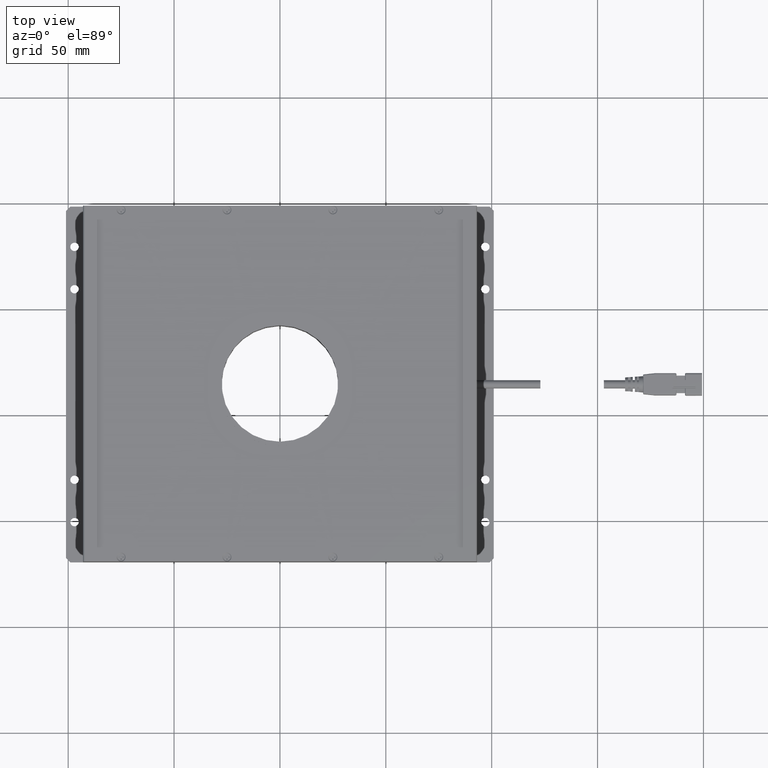
[diagram: clean part render]
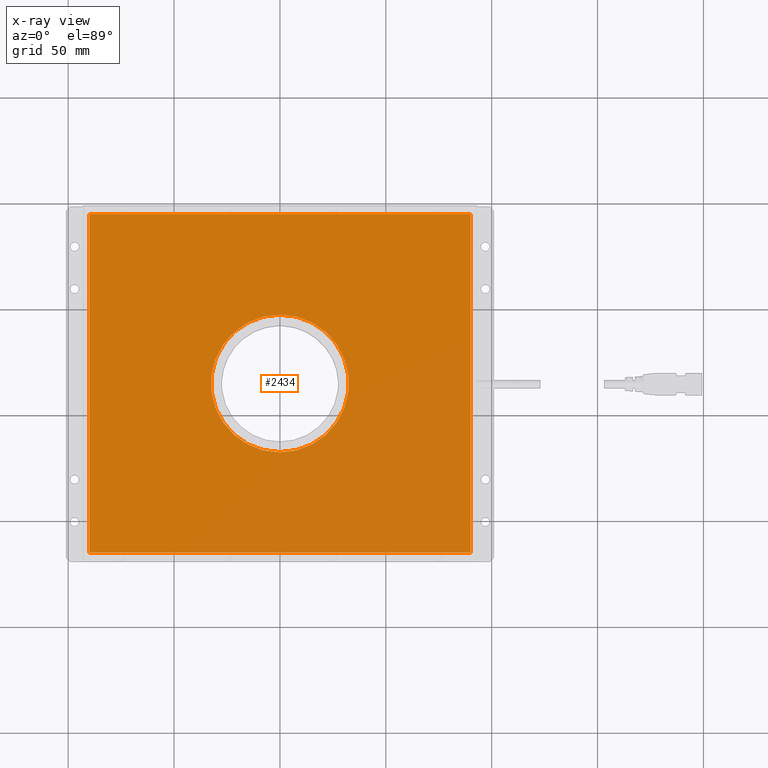
[diagram: x-ray — body ghosted, one internal face saturated and labeled with its STEP entity id]
A machine part, top view, then the same camera in x-ray: the body is ghosted and one INTERNAL B-rep face — a face not visible from any outside direction — is saturated and labeled: STEP entity #2434.
In plain terms, the highlighted planar face has unit normal (0, -0, 1).
Its self-contained STEP definition (entity closure, byte-faithful):
#2434=ADVANCED_FACE('NONE',(#5855,#5856),#5857,.F.);
#5855=FACE_BOUND('',#10157,.T.);
#5856=FACE_OUTER_BOUND('',#10158,.T.);
#5857=PLANE('',#10159);
#10157=EDGE_LOOP('',(#18514));
#10158=EDGE_LOOP('',(#18515,#18516,#18517,#18518));
#10159=AXIS2_PLACEMENT_3D('',#18519,#18520,#18521);
#18514=ORIENTED_EDGE('',*,*,#22450,.F.);
#18515=ORIENTED_EDGE('',*,*,#23964,.F.);
#18516=ORIENTED_EDGE('',*,*,#23803,.F.);
#18517=ORIENTED_EDGE('',*,*,#23937,.F.);
#18518=ORIENTED_EDGE('',*,*,#22402,.F.);
#18519=CARTESIAN_POINT('',(0.0,0.014625,0.012575));
#18520=DIRECTION('',(0.0,-3.49148336110938E-15,1.0));
#18521=DIRECTION('',(1.0,0.0,0.0));
#22402=EDGE_CURVE('NONE',#25122,#25124,#25125,.T.);
#22450=EDGE_CURVE('NONE',#25200,#25200,#25201,.T.);
#23803=EDGE_CURVE('NONE',#27220,#27222,#27223,.T.);
#23937=EDGE_CURVE('NONE',#25124,#27220,#27374,.T.);
#23964=EDGE_CURVE('NONE',#27222,#25122,#27403,.T.);
#25122=VERTEX_POINT('NONE',#29031);
#25124=VERTEX_POINT('NONE',#29034);
#25125=LINE('',#29035,#29036);
#25200=VERTEX_POINT('',#29138);
#25201=CIRCLE('',#29139,0.0325);
#27220=VERTEX_POINT('NONE',#31994);
#27222=VERTEX_POINT('NONE',#31997);
#27223=LINE('',#31998,#31999);
#27374=LINE('',#32227,#32228);
#27403=LINE('',#32268,#32269);
#29031=CARTESIAN_POINT('',(-0.09,-0.065375,0.0125749999999997));
#29034=CARTESIAN_POINT('',(0.09,-0.065375,0.0125749999999997));
#29035=CARTESIAN_POINT('',(0.0,-0.065375,0.0125749999999997));
#29036=VECTOR('',#33538,1.0);
#29138=CARTESIAN_POINT('',(0.0,-0.017875,0.0125749999999999));
#29139=AXIS2_PLACEMENT_3D('',#33593,#33594,#33595);
#31994=CARTESIAN_POINT('',(0.09,0.094625,0.0125750000000003));
#31997=CARTESIAN_POINT('',(-0.09,0.094625,0.0125750000000003));
#31998=CARTESIAN_POINT('',(0.0,0.094625,0.0125750000000003));
#31999=VECTOR('',#34886,1.0);
#32227=CARTESIAN_POINT('',(0.09,0.014625,0.012575));
#32228=VECTOR('',#34995,1.0);
#32268=CARTESIAN_POINT('',(-0.09,0.014625,0.012575));
#32269=VECTOR('',#35013,1.0);
#33538=DIRECTION('',(1.0,0.0,0.0));
#33593=CARTESIAN_POINT('',(0.0,0.014625,0.012575));
#33594=DIRECTION('',(0.0,3.49148336110938E-15,-1.0));
#33595=DIRECTION('',(0.0,-1.0,-3.49148336110938E-15));
#34886=DIRECTION('',(-1.0,0.0,-0.0));
#34995=DIRECTION('',(0.0,1.0,3.49148336110938E-15));
#35013=DIRECTION('',(0.0,-1.0,-3.49148336110938E-15));